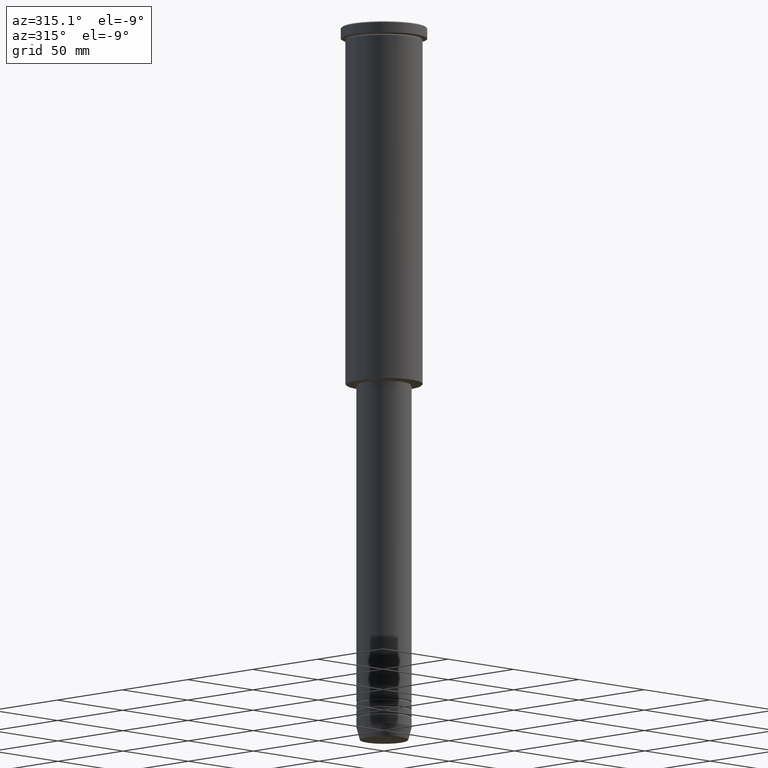
[diagram: clean part render]
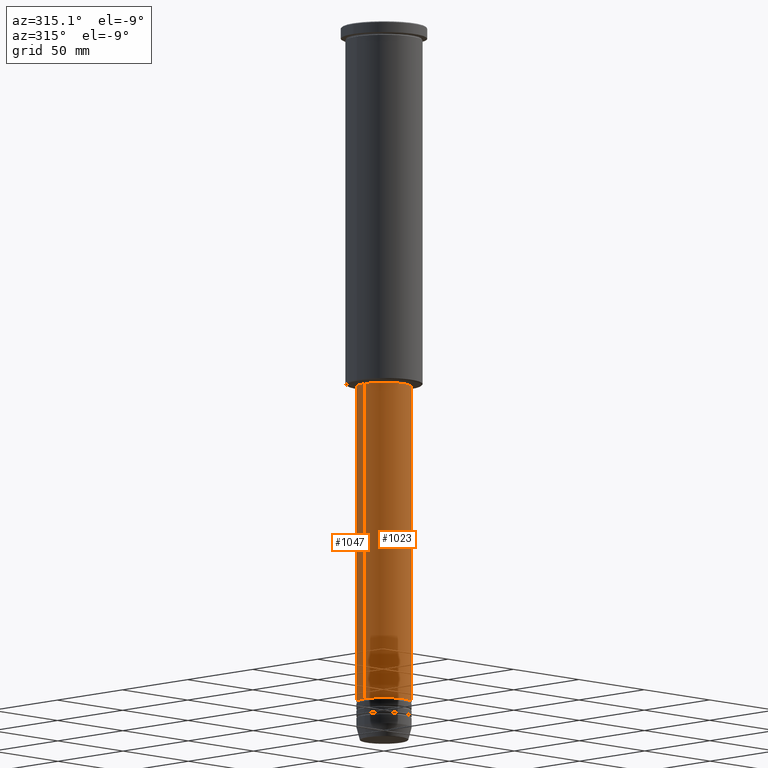
[diagram: same view with one multi-face feature highlighted, each face labeled with its STEP entity id]
A machine part, auxiliary view. The highlighted faces form ONE feature: a constant-radius fillet chain: 2 tangent blend faces with common blend radius 15 mm. The faces share edges in the B-rep.
Their STEP definitions:
[1] entity #1023 (Cylinder):
#83 = CARTESIAN_POINT ( 'NONE',  ( 0.000000000000000000, 0.000000000000000000, -369.9999999999998863 ) ) ;
#120 = CARTESIAN_POINT ( 'NONE',  ( -15.00000000000000000, 1.836970198721029589E-15, 0.000000000000000000 ) ) ;
#150 = CARTESIAN_POINT ( 'NONE',  ( 15.00000000000000000, 0.000000000000000000, 0.000000000000000000 ) ) ;
#195 = ORIENTED_EDGE ( 'NONE', *, *, #341, .F. ) ;
#220 = EDGE_CURVE ( 'NONE', #702, #782, #895, .T. ) ;
#313 = EDGE_LOOP ( 'NONE', ( #195, #746, #451, #779 ) ) ;
#341 = EDGE_CURVE ( 'NONE', #1054, #702, #777, .T. ) ;
#378 = CYLINDRICAL_SURFACE ( 'NONE', #448, 15.00000000000000000 ) ;
#401 = CARTESIAN_POINT ( 'NONE',  ( -15.00000000000000000, 1.836970198721029589E-15, -196.9999999999999147 ) ) ;
#402 = VERTEX_POINT ( 'NONE', #490 ) ;
#440 = DIRECTION ( 'NONE',  ( 1.000000000000000000, 0.000000000000000000, 0.000000000000000000 ) ) ;
#448 = AXIS2_PLACEMENT_3D ( 'NONE', #1027, #1055, #905 ) ;
#449 = DIRECTION ( 'NONE',  ( 1.000000000000000000, 0.000000000000000000, 0.000000000000000000 ) ) ;
#451 = ORIENTED_EDGE ( 'NONE', *, *, #1137, .T. ) ;
#490 = CARTESIAN_POINT ( 'NONE',  ( 15.00000000000000000, 0.000000000000000000, -369.9999999999998863 ) ) ;
#521 = DIRECTION ( 'NONE',  ( -0.000000000000000000, -0.000000000000000000, 1.000000000000000000 ) ) ;
#556 = CARTESIAN_POINT ( 'NONE',  ( 0.000000000000000000, 0.000000000000000000, -196.9999999999999147 ) ) ;
#557 = AXIS2_PLACEMENT_3D ( 'NONE', #83, #913, #449 ) ;
#595 = CARTESIAN_POINT ( 'NONE',  ( 15.00000000000000000, 0.000000000000000000, -196.9999999999999147 ) ) ;
#626 = EDGE_CURVE ( 'NONE', #1054, #402, #1080, .T. ) ;
#658 = VECTOR ( 'NONE', #521, 1000.000000000000000 ) ;
#702 = VERTEX_POINT ( 'NONE', #401 ) ;
#721 = DIRECTION ( 'NONE',  ( -0.000000000000000000, -0.000000000000000000, 1.000000000000000000 ) ) ;
#746 = ORIENTED_EDGE ( 'NONE', *, *, #626, .T. ) ;
#777 = LINE ( 'NONE', #120, #979 ) ;
#779 = ORIENTED_EDGE ( 'NONE', *, *, #220, .F. ) ;
#782 = VERTEX_POINT ( 'NONE', #595 ) ;
#844 = FACE_OUTER_BOUND ( 'NONE', #313, .T. ) ;
#847 = DIRECTION ( 'NONE',  ( -0.000000000000000000, -0.000000000000000000, 1.000000000000000000 ) ) ;
#852 = CARTESIAN_POINT ( 'NONE',  ( -15.00000000000000000, 1.836970198721029589E-15, -369.9999999999998863 ) ) ;
#859 = AXIS2_PLACEMENT_3D ( 'NONE', #556, #721, #440 ) ;
#895 = CIRCLE ( 'NONE', #859, 15.00000000000000000 ) ;
#905 = DIRECTION ( 'NONE',  ( 1.000000000000000000, 0.000000000000000000, 0.000000000000000000 ) ) ;
#913 = DIRECTION ( 'NONE',  ( -0.000000000000000000, -0.000000000000000000, 1.000000000000000000 ) ) ;
#974 = LINE ( 'NONE', #150, #658 ) ;
#979 = VECTOR ( 'NONE', #847, 1000.000000000000000 ) ;
#1023 = ADVANCED_FACE ( 'NONE', ( #844 ), #378, .T. ) ;
#1027 = CARTESIAN_POINT ( 'NONE',  ( 0.000000000000000000, 0.000000000000000000, 0.000000000000000000 ) ) ;
#1054 = VERTEX_POINT ( 'NONE', #852 ) ;
#1055 = DIRECTION ( 'NONE',  ( -0.000000000000000000, -0.000000000000000000, 1.000000000000000000 ) ) ;
#1080 = CIRCLE ( 'NONE', #557, 15.00000000000000000 ) ;
#1137 = EDGE_CURVE ( 'NONE', #402, #782, #974, .T. ) ;
[2] entity #1047 (Cylinder):
#42 = EDGE_LOOP ( 'NONE', ( #153, #1093, #723, #906 ) ) ;
#53 = AXIS2_PLACEMENT_3D ( 'NONE', #1012, #669, #762 ) ;
#120 = CARTESIAN_POINT ( 'NONE',  ( -15.00000000000000000, 1.836970198721029589E-15, 0.000000000000000000 ) ) ;
#122 = DIRECTION ( 'NONE',  ( 1.000000000000000000, 0.000000000000000000, 0.000000000000000000 ) ) ;
#150 = CARTESIAN_POINT ( 'NONE',  ( 15.00000000000000000, 0.000000000000000000, 0.000000000000000000 ) ) ;
#153 = ORIENTED_EDGE ( 'NONE', *, *, #727, .T. ) ;
#181 = CIRCLE ( 'NONE', #429, 15.00000000000000000 ) ;
#209 = DIRECTION ( 'NONE',  ( -0.000000000000000000, -0.000000000000000000, 1.000000000000000000 ) ) ;
#230 = DIRECTION ( 'NONE',  ( 1.000000000000000000, 0.000000000000000000, 0.000000000000000000 ) ) ;
#275 = CIRCLE ( 'NONE', #370, 15.00000000000000000 ) ;
#323 = DIRECTION ( 'NONE',  ( -0.000000000000000000, -0.000000000000000000, 1.000000000000000000 ) ) ;
#341 = EDGE_CURVE ( 'NONE', #1054, #702, #777, .T. ) ;
#370 = AXIS2_PLACEMENT_3D ( 'NONE', #407, #323, #230 ) ;
#401 = CARTESIAN_POINT ( 'NONE',  ( -15.00000000000000000, 1.836970198721029589E-15, -196.9999999999999147 ) ) ;
#402 = VERTEX_POINT ( 'NONE', #490 ) ;
#407 = CARTESIAN_POINT ( 'NONE',  ( 0.000000000000000000, 0.000000000000000000, -196.9999999999999147 ) ) ;
#429 = AXIS2_PLACEMENT_3D ( 'NONE', #855, #209, #122 ) ;
#480 = FACE_OUTER_BOUND ( 'NONE', #42, .T. ) ;
#490 = CARTESIAN_POINT ( 'NONE',  ( 15.00000000000000000, 0.000000000000000000, -369.9999999999998863 ) ) ;
#521 = DIRECTION ( 'NONE',  ( -0.000000000000000000, -0.000000000000000000, 1.000000000000000000 ) ) ;
#595 = CARTESIAN_POINT ( 'NONE',  ( 15.00000000000000000, 0.000000000000000000, -196.9999999999999147 ) ) ;
#658 = VECTOR ( 'NONE', #521, 1000.000000000000000 ) ;
#669 = DIRECTION ( 'NONE',  ( -0.000000000000000000, -0.000000000000000000, 1.000000000000000000 ) ) ;
#702 = VERTEX_POINT ( 'NONE', #401 ) ;
#708 = EDGE_CURVE ( 'NONE', #782, #702, #275, .T. ) ;
#723 = ORIENTED_EDGE ( 'NONE', *, *, #708, .F. ) ;
#727 = EDGE_CURVE ( 'NONE', #402, #1054, #181, .T. ) ;
#762 = DIRECTION ( 'NONE',  ( 1.000000000000000000, 0.000000000000000000, 0.000000000000000000 ) ) ;
#777 = LINE ( 'NONE', #120, #979 ) ;
#782 = VERTEX_POINT ( 'NONE', #595 ) ;
#847 = DIRECTION ( 'NONE',  ( -0.000000000000000000, -0.000000000000000000, 1.000000000000000000 ) ) ;
#852 = CARTESIAN_POINT ( 'NONE',  ( -15.00000000000000000, 1.836970198721029589E-15, -369.9999999999998863 ) ) ;
#855 = CARTESIAN_POINT ( 'NONE',  ( 0.000000000000000000, 0.000000000000000000, -369.9999999999998863 ) ) ;
#906 = ORIENTED_EDGE ( 'NONE', *, *, #1137, .F. ) ;
#974 = LINE ( 'NONE', #150, #658 ) ;
#979 = VECTOR ( 'NONE', #847, 1000.000000000000000 ) ;
#1012 = CARTESIAN_POINT ( 'NONE',  ( 0.000000000000000000, 0.000000000000000000, 0.000000000000000000 ) ) ;
#1047 = ADVANCED_FACE ( 'NONE', ( #480 ), #1112, .T. ) ;
#1054 = VERTEX_POINT ( 'NONE', #852 ) ;
#1093 = ORIENTED_EDGE ( 'NONE', *, *, #341, .T. ) ;
#1112 = CYLINDRICAL_SURFACE ( 'NONE', #53, 15.00000000000000000 ) ;
#1137 = EDGE_CURVE ( 'NONE', #402, #782, #974, .T. ) ;